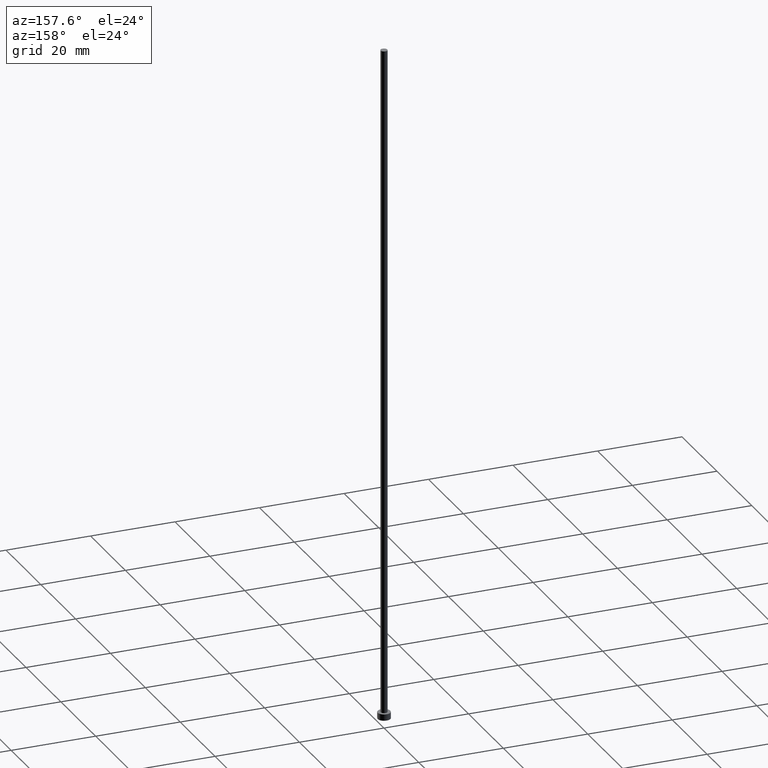
[diagram: clean part render]
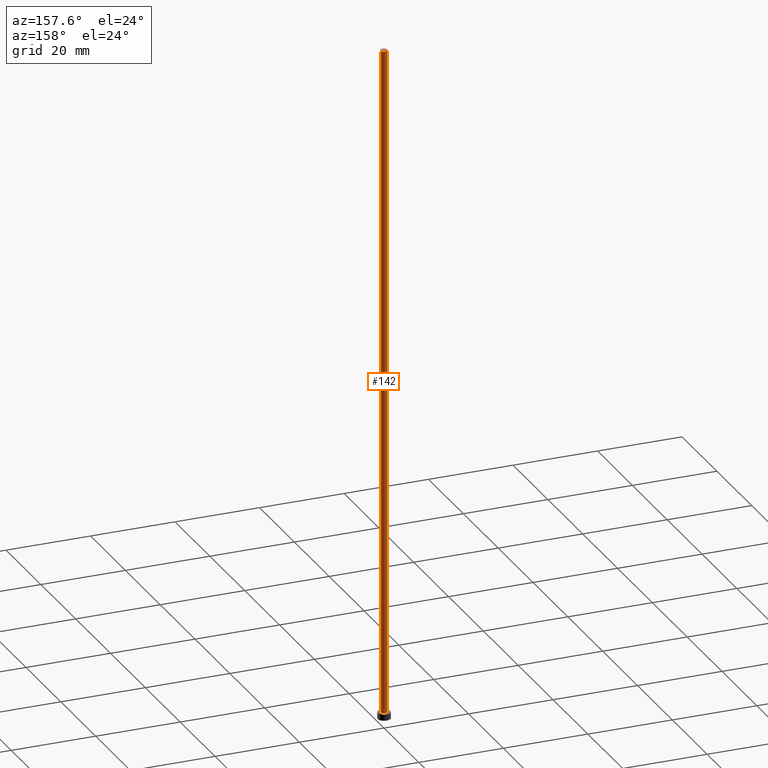
[diagram: same view with one face highlighted and labeled with its STEP entity id]
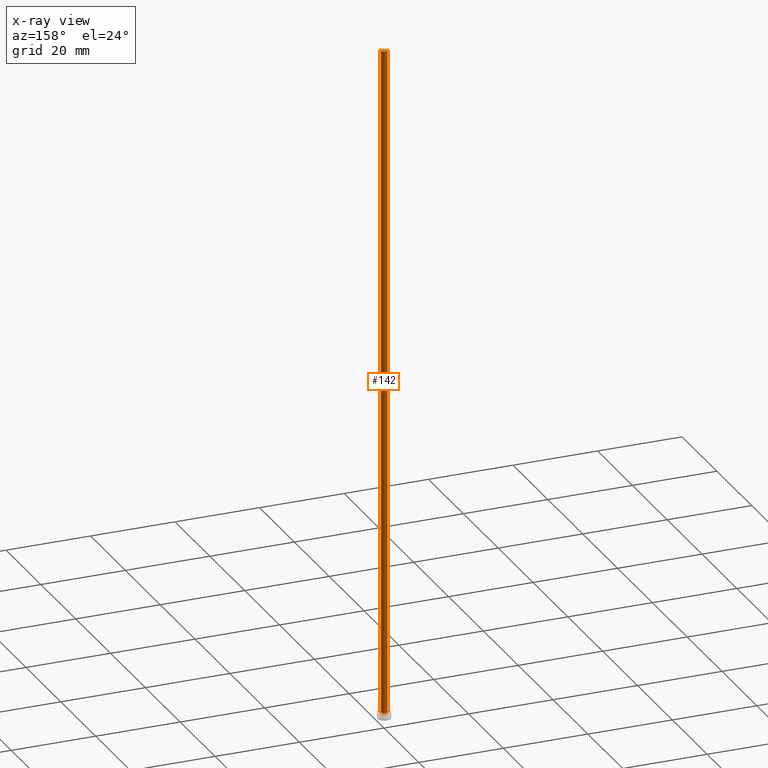
[diagram: x-ray of the same camera — body ghosted, the highlighted face saturated]
A machine part, auxiliary view. The second image highlights one B-rep face of the part: STEP entity #142.
The next image is the same camera in x-ray: the body ghosted, the highlighted face saturated — about 0% of this face is hidden behind the body in this view.
In plain terms, the highlighted cylindrical surface (edge-blend (fillet) strip) has radius 0.8 mm, axis along (-0, -0, -1).
Its self-contained STEP definition (entity closure, byte-faithful):
#3 = CARTESIAN_POINT ( 'NONE',  ( 0.000000000000000000, 0.000000000000000000, 160.0000000000000000 ) ) ;
#8 = VECTOR ( 'NONE', #214, 1000.000000000000000 ) ;
#17 = DIRECTION ( 'NONE',  ( -0.000000000000000000, -0.000000000000000000, -1.000000000000000000 ) ) ;
#19 = DIRECTION ( 'NONE',  ( -1.000000000000000000, 0.000000000000000000, 0.000000000000000000 ) ) ;
#25 = CARTESIAN_POINT ( 'NONE',  ( -0.8000000000000000444, 0.000000000000000000, 1.500000000000000000 ) ) ;
#32 = ORIENTED_EDGE ( 'NONE', *, *, #219, .F. ) ;
#35 = LINE ( 'NONE', #96, #8 ) ;
#36 = EDGE_CURVE ( 'NONE', #74, #154, #35, .T. ) ;
#37 = AXIS2_PLACEMENT_3D ( 'NONE', #121, #202, #198 ) ;
#43 = CARTESIAN_POINT ( 'NONE',  ( 0.8000000000000000444, 9.797174393178826150E-17, 1.500000000000000000 ) ) ;
#45 = DIRECTION ( 'NONE',  ( 1.000000000000000000, 0.000000000000000000, 0.000000000000000000 ) ) ;
#74 = VERTEX_POINT ( 'NONE', #97 ) ;
#78 = FACE_OUTER_BOUND ( 'NONE', #164, .T. ) ;
#84 = DIRECTION ( 'NONE',  ( 0.000000000000000000, 0.000000000000000000, 1.000000000000000000 ) ) ;
#96 = CARTESIAN_POINT ( 'NONE',  ( -0.8000000000000000444, 0.000000000000000000, 160.0000000000000000 ) ) ;
#97 = CARTESIAN_POINT ( 'NONE',  ( -0.8000000000000000444, 0.000000000000000000, 160.0000000000000000 ) ) ;
#117 = ORIENTED_EDGE ( 'NONE', *, *, #139, .T. ) ;
#121 = CARTESIAN_POINT ( 'NONE',  ( 0.000000000000000000, 0.000000000000000000, 1.500000000000000000 ) ) ;
#122 = CARTESIAN_POINT ( 'NONE',  ( 0.8000000000000000444, 9.797174393178826150E-17, 160.0000000000000000 ) ) ;
#139 = EDGE_CURVE ( 'NONE', #179, #154, #209, .T. ) ;
#142 = ADVANCED_FACE ( 'NONE', ( #78 ), #211, .T. ) ;
#144 = DIRECTION ( 'NONE',  ( -0.000000000000000000, -0.000000000000000000, -1.000000000000000000 ) ) ;
#152 = VECTOR ( 'NONE', #144, 1000.000000000000000 ) ;
#154 = VERTEX_POINT ( 'NONE', #25 ) ;
#162 = CIRCLE ( 'NONE', #169, 0.8000000000000000444 ) ;
#164 = EDGE_LOOP ( 'NONE', ( #32, #194, #117, #230 ) ) ;
#169 = AXIS2_PLACEMENT_3D ( 'NONE', #3, #84, #45 ) ;
#179 = VERTEX_POINT ( 'NONE', #43 ) ;
#183 = AXIS2_PLACEMENT_3D ( 'NONE', #204, #17, #19 ) ;
#189 = CARTESIAN_POINT ( 'NONE',  ( 0.8000000000000000444, 9.797174393178826150E-17, 160.0000000000000000 ) ) ;
#194 = ORIENTED_EDGE ( 'NONE', *, *, #237, .T. ) ;
#196 = VERTEX_POINT ( 'NONE', #122 ) ;
#198 = DIRECTION ( 'NONE',  ( 1.000000000000000000, 0.000000000000000000, 0.000000000000000000 ) ) ;
#202 = DIRECTION ( 'NONE',  ( 0.000000000000000000, 0.000000000000000000, 1.000000000000000000 ) ) ;
#204 = CARTESIAN_POINT ( 'NONE',  ( 0.000000000000000000, 0.000000000000000000, 160.0000000000000000 ) ) ;
#206 = LINE ( 'NONE', #189, #152 ) ;
#209 = CIRCLE ( 'NONE', #37, 0.8000000000000000444 ) ;
#211 = CYLINDRICAL_SURFACE ( 'NONE', #183, 0.8000000000000000444 ) ;
#214 = DIRECTION ( 'NONE',  ( -0.000000000000000000, -0.000000000000000000, -1.000000000000000000 ) ) ;
#219 = EDGE_CURVE ( 'NONE', #196, #74, #162, .T. ) ;
#230 = ORIENTED_EDGE ( 'NONE', *, *, #36, .F. ) ;
#237 = EDGE_CURVE ( 'NONE', #196, #179, #206, .T. ) ;